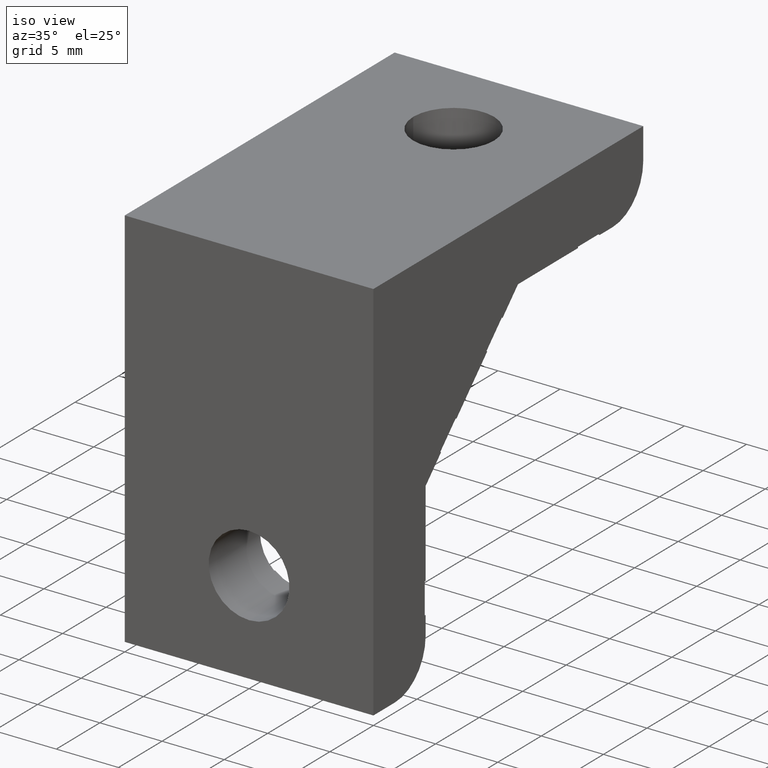
[diagram: clean part render]
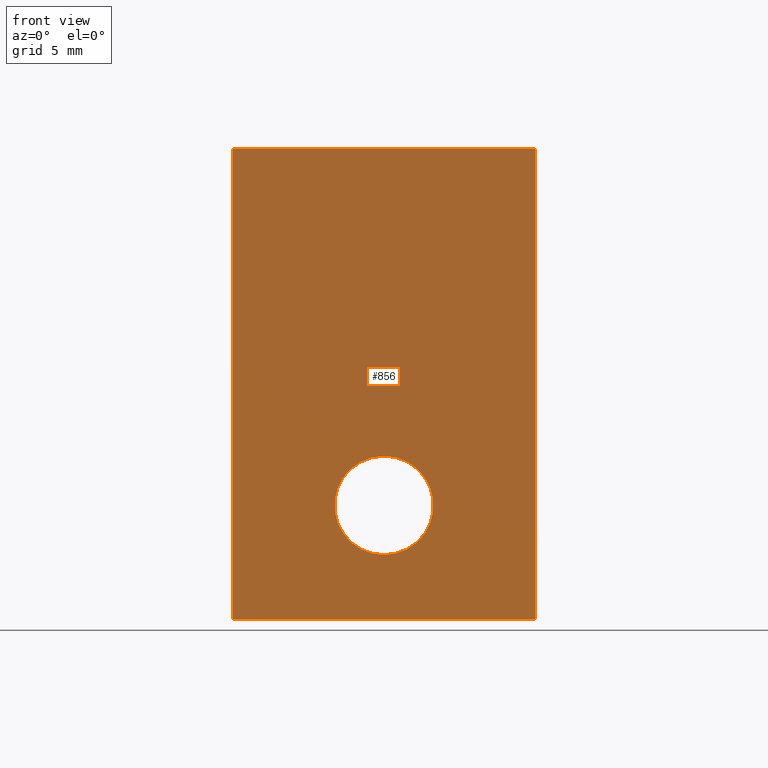
[diagram: tour spotlight — one face highlighted and labeled with its STEP entity id]
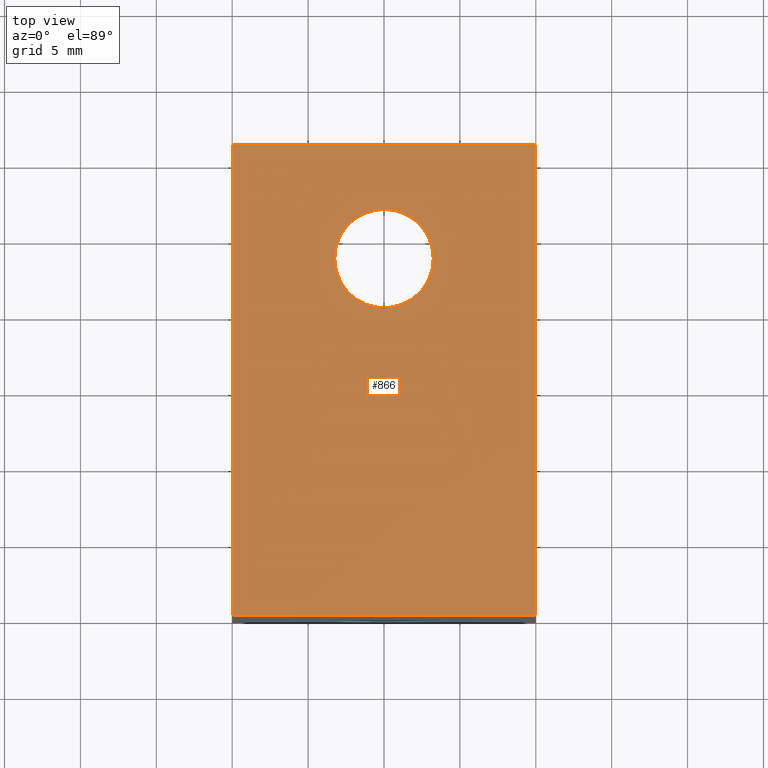
[diagram: tour spotlight — one face highlighted and labeled with its STEP entity id]
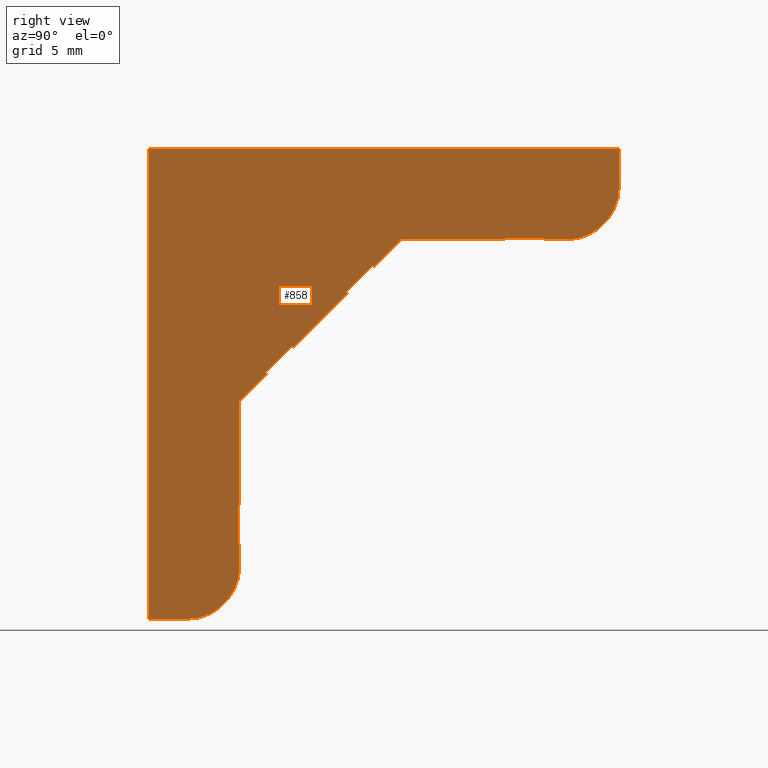
[diagram: tour spotlight — one face highlighted and labeled with its STEP entity id]
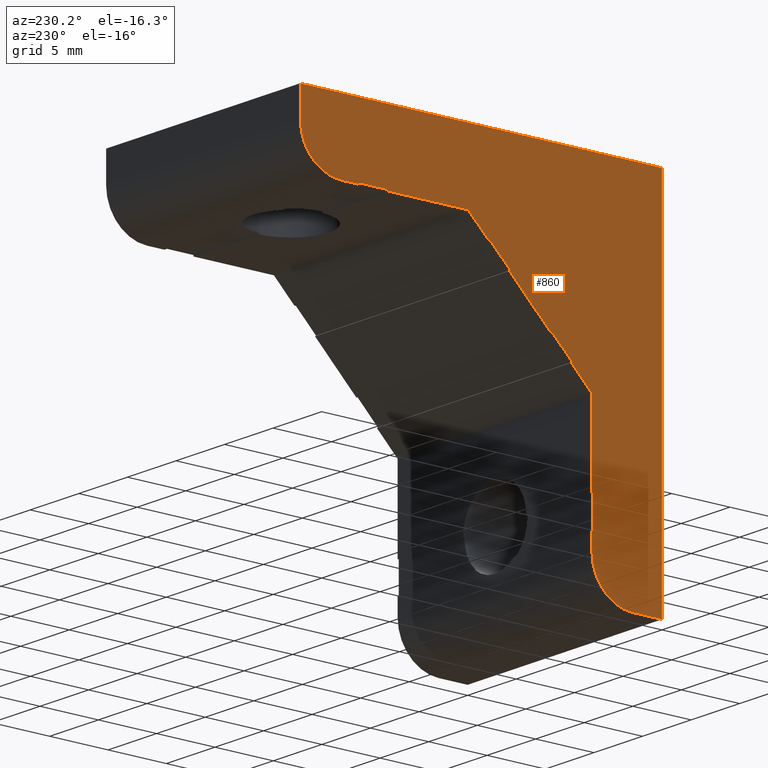
[diagram: tour spotlight — one face highlighted and labeled with its STEP entity id]
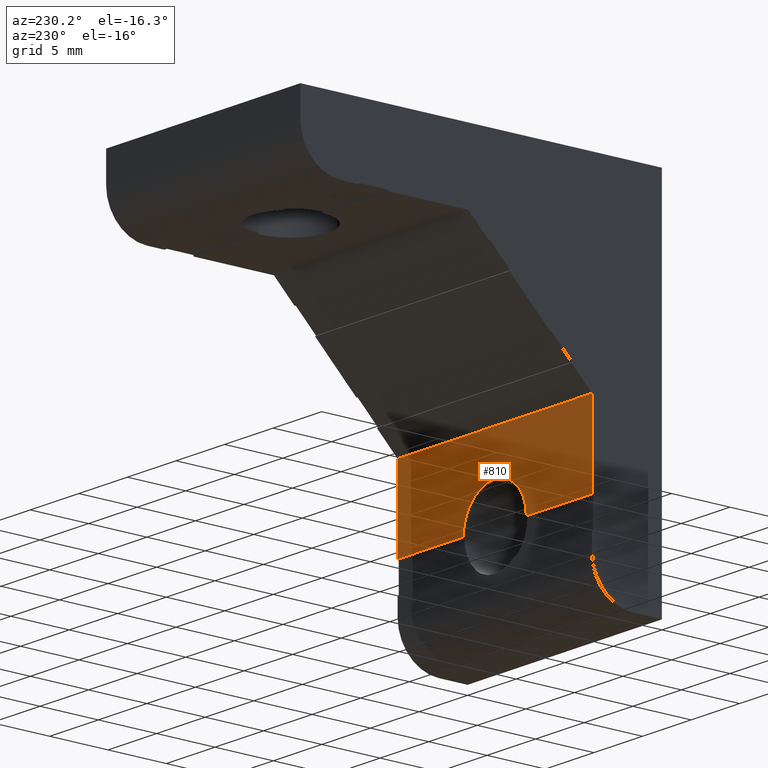
[diagram: tour spotlight — one face highlighted and labeled with its STEP entity id]
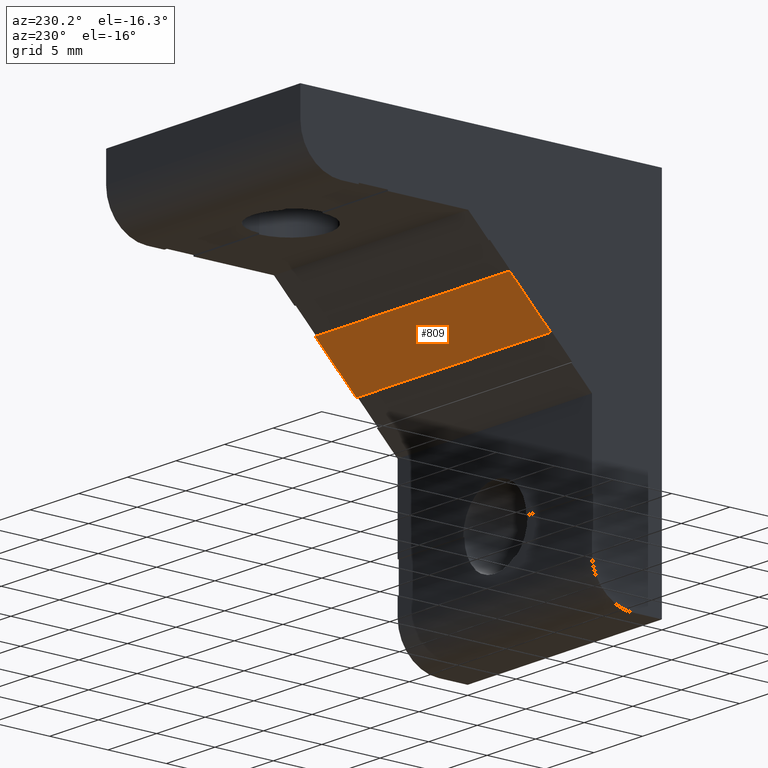
[diagram: tour spotlight — one face highlighted and labeled with its STEP entity id]
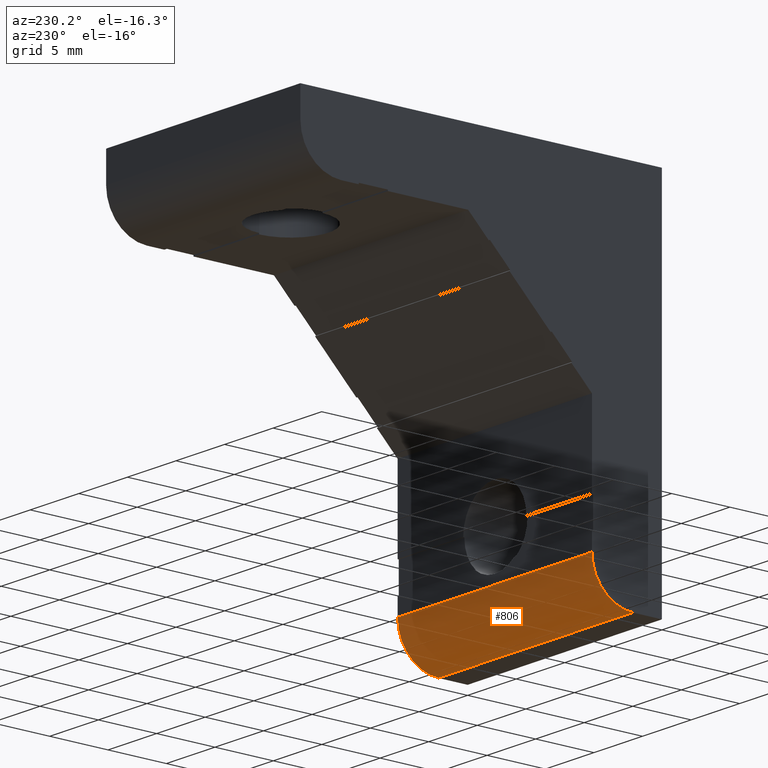
[diagram: tour spotlight — one face highlighted and labeled with its STEP entity id]
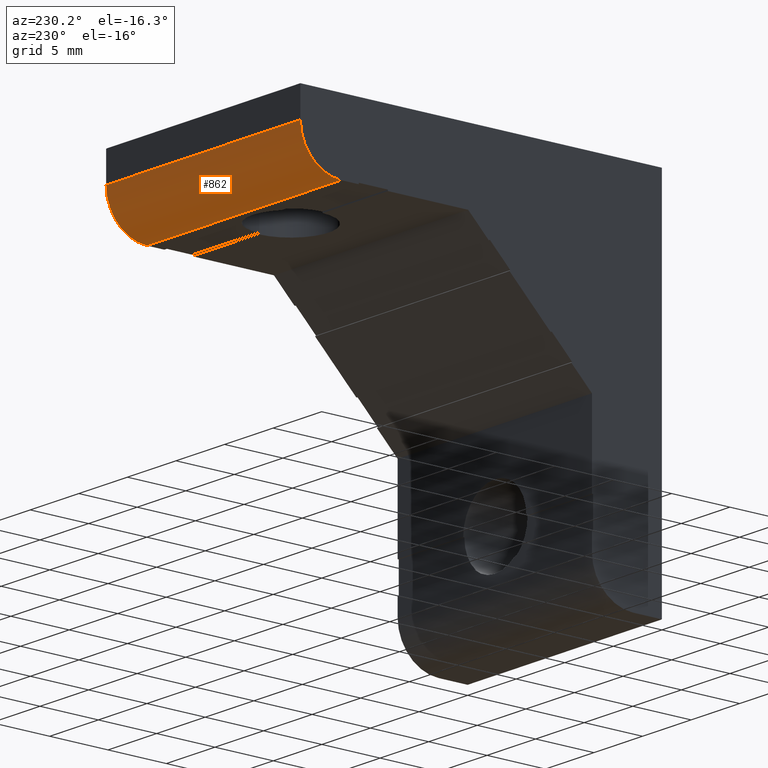
[diagram: tour spotlight — one face highlighted and labeled with its STEP entity id]
A machine part: a face-by-face anatomy tour. The part has 37 B-rep faces; the first image is the clean iso view, then the 8 largest visible faces are spotlighted one at a time (largest first), each with its STEP entity span.

Face 1 — front view, entity #856. In plain terms, the highlighted planar face has unit normal (0, 1, 0).
Definition (entity closure, byte-faithful):
#172 = FACE_BOUND ( 'NONE', #1166, .T. ) ;
#193 = CIRCLE ( 'NONE', #291, 3.249999999999999600 ) ;
#218 = LINE ( 'NONE', #592, #219 ) ;
#219 = VECTOR ( 'NONE', #593, 1000.000000000000000 ) ;
#249 = EDGE_CURVE ( 'NONE', #1036, #1037, #193, .T. ) ;
#263 = EDGE_CURVE ( 'NONE', #1050, #1049, #218, .T. ) ;
#291 = AXIS2_PLACEMENT_3D ( 'NONE', #1285, #1284, #1283 ) ;
#321 = CARTESIAN_POINT ( 'NONE',  ( 20.00000000000000000, 0.0000000000000000000, 0.0000000000000000000 ) ) ;
#322 = CARTESIAN_POINT ( 'NONE',  ( 0.0000000000000000000, 0.0000000000000000000, 0.0000000000000000000 ) ) ;
#370 = CARTESIAN_POINT ( 'NONE',  ( 10.00000000000000000, 0.0000000000000000000, -23.50000000000000000 ) ) ;
#371 = DIRECTION ( 'NONE',  ( 0.0000000000000000000, -1.000000000000000000, -0.0000000000000000000 ) ) ;
#372 = DIRECTION ( 'NONE',  ( 0.0000000000000000000, 0.0000000000000000000, 1.000000000000000000 ) ) ;
#438 = PLANE ( 'NONE',  #815 ) ;
#439 = CARTESIAN_POINT ( 'NONE',  ( 0.0000000000000000000, 0.0000000000000000000, -31.00000000000000000 ) ) ;
#440 = DIRECTION ( 'NONE',  ( 0.0000000000000000000, 1.000000000000000000, 0.0000000000000000000 ) ) ;
#441 = DIRECTION ( 'NONE',  ( 0.0000000000000000000, 0.0000000000000000000, 1.000000000000000000 ) ) ;
#518 = CARTESIAN_POINT ( 'NONE',  ( 0.0000000000000000000, 0.0000000000000000000, -15.50000000000000000 ) ) ;
#519 = DIRECTION ( 'NONE',  ( 0.0000000000000000000, 0.0000000000000000000, 1.000000000000000000 ) ) ;
#520 = CARTESIAN_POINT ( 'NONE',  ( 10.00000000000000000, 0.0000000000000000000, 0.0000000000000000000 ) ) ;
#521 = DIRECTION ( 'NONE',  ( -1.000000000000000000, 0.0000000000000000000, 0.0000000000000000000 ) ) ;
#522 = CARTESIAN_POINT ( 'NONE',  ( 20.00000000000000000, 0.0000000000000000000, -15.50000000000000000 ) ) ;
#523 = DIRECTION ( 'NONE',  ( 0.0000000000000000000, 0.0000000000000000000, 1.000000000000000000 ) ) ;
#546 = CARTESIAN_POINT ( 'NONE',  ( 10.00000000000000000, 0.0000000000000000000, -26.75000000000000000 ) ) ;
#547 = CARTESIAN_POINT ( 'NONE',  ( 10.00000000000000000, 0.0000000000000000000, -20.25000000000000000 ) ) ;
#559 = CARTESIAN_POINT ( 'NONE',  ( 0.0000000000000000000, 0.0000000000000000000, -31.00000000000000000 ) ) ;
#560 = CARTESIAN_POINT ( 'NONE',  ( 20.00000000000000000, 0.0000000000000000000, -31.00000000000000000 ) ) ;
#592 = CARTESIAN_POINT ( 'NONE',  ( 10.00000000000000000, 0.0000000000000000000, -31.00000000000000000 ) ) ;
#593 = DIRECTION ( 'NONE',  ( -1.000000000000000000, -0.0000000000000000000, -0.0000000000000000000 ) ) ;
#730 = CIRCLE ( 'NONE', #836, 3.249999999999999600 ) ;
#815 = AXIS2_PLACEMENT_3D ( 'NONE', #439, #440, #441 ) ;
#836 = AXIS2_PLACEMENT_3D ( 'NONE', #370, #371, #372 ) ;
#856 = ADVANCED_FACE ( 'NONE', ( #172, #875 ), #438, .F. ) ;
#875 = FACE_OUTER_BOUND ( 'NONE', #1165, .T. ) ;
#910 = LINE ( 'NONE', #518, #911 ) ;
#911 = VECTOR ( 'NONE', #519, 1000.000000000000000 ) ;
#912 = LINE ( 'NONE', #520, #913 ) ;
#913 = VECTOR ( 'NONE', #521, 1000.000000000000000 ) ;
#914 = LINE ( 'NONE', #522, #915 ) ;
#915 = VECTOR ( 'NONE', #523, 1000.000000000000000 ) ;
#979 = ORIENTED_EDGE ( 'NONE', *, *, #1010, .F. ) ;
#980 = ORIENTED_EDGE ( 'NONE', *, *, #1011, .T. ) ;
#981 = ORIENTED_EDGE ( 'NONE', *, *, #1012, .T. ) ;
#982 = ORIENTED_EDGE ( 'NONE', *, *, #263, .F. ) ;
#983 = ORIENTED_EDGE ( 'NONE', *, *, #249, .F. ) ;
#984 = ORIENTED_EDGE ( 'NONE', *, *, #1308, .F. ) ;
#1010 = EDGE_CURVE ( 'NONE', #1049, #1072, #910, .T. ) ;
#1011 = EDGE_CURVE ( 'NONE', #1071, #1072, #912, .T. ) ;
#1012 = EDGE_CURVE ( 'NONE', #1050, #1071, #914, .T. ) ;
#1036 = VERTEX_POINT ( 'NONE', #546 ) ;
#1037 = VERTEX_POINT ( 'NONE', #547 ) ;
#1049 = VERTEX_POINT ( 'NONE', #559 ) ;
#1050 = VERTEX_POINT ( 'NONE', #560 ) ;
#1071 = VERTEX_POINT ( 'NONE', #321 ) ;
#1072 = VERTEX_POINT ( 'NONE', #322 ) ;
#1165 = EDGE_LOOP ( 'NONE', ( #982, #981, #980, #979 ) ) ;
#1166 = EDGE_LOOP ( 'NONE', ( #984, #983 ) ) ;
#1283 = DIRECTION ( 'NONE',  ( 0.0000000000000000000, 0.0000000000000000000, 1.000000000000000000 ) ) ;
#1284 = DIRECTION ( 'NONE',  ( 0.0000000000000000000, -1.000000000000000000, -0.0000000000000000000 ) ) ;
#1285 = CARTESIAN_POINT ( 'NONE',  ( 10.00000000000000000, 0.0000000000000000000, -23.50000000000000000 ) ) ;
#1308 = EDGE_CURVE ( 'NONE', #1037, #1036, #730, .T. ) ;

Face 2 — top view, entity #866. In plain terms, the highlighted planar face has unit normal (0, 0, -1).
Definition (entity closure, byte-faithful):
#44 = ORIENTED_EDGE ( 'NONE', *, *, #1314, .F. ) ;
#45 = ORIENTED_EDGE ( 'NONE', *, *, #275, .F. ) ;
#46 = ORIENTED_EDGE ( 'NONE', *, *, #1011, .F. ) ;
#47 = ORIENTED_EDGE ( 'NONE', *, *, #1127, .F. ) ;
#48 = ORIENTED_EDGE ( 'NONE', *, *, #1014, .F. ) ;
#49 = ORIENTED_EDGE ( 'NONE', *, *, #1124, .F. ) ;
#238 = CIRCLE ( 'NONE', #298, 3.249999999999999600 ) ;
#275 = EDGE_CURVE ( 'NONE', #1044, #1040, #238, .T. ) ;
#298 = AXIS2_PLACEMENT_3D ( 'NONE', #620, #621, #622 ) ;
#321 = CARTESIAN_POINT ( 'NONE',  ( 20.00000000000000000, 0.0000000000000000000, 0.0000000000000000000 ) ) ;
#322 = CARTESIAN_POINT ( 'NONE',  ( 0.0000000000000000000, 0.0000000000000000000, 0.0000000000000000000 ) ) ;
#339 = CARTESIAN_POINT ( 'NONE',  ( 20.00000000000000000, 31.00000000000000000, 0.0000000000000000000 ) ) ;
#340 = CARTESIAN_POINT ( 'NONE',  ( 0.0000000000000000000, 31.00000000000000000, 0.0000000000000000000 ) ) ;
#348 = CARTESIAN_POINT ( 'NONE',  ( 0.0000000000000000000, 15.50000000000000000, 0.0000000000000000000 ) ) ;
#349 = DIRECTION ( 'NONE',  ( 0.0000000000000000000, 1.000000000000000000, 0.0000000000000000000 ) ) ;
#354 = CARTESIAN_POINT ( 'NONE',  ( 20.00000000000000000, 15.50000000000000000, 0.0000000000000000000 ) ) ;
#355 = DIRECTION ( 'NONE',  ( -0.0000000000000000000, -1.000000000000000000, -0.0000000000000000000 ) ) ;
#383 = CARTESIAN_POINT ( 'NONE',  ( 10.00000000000000000, 23.50000000000000000, 0.0000000000000000000 ) ) ;
#384 = DIRECTION ( 'NONE',  ( -0.0000000000000000000, -0.0000000000000000000, 1.000000000000000000 ) ) ;
#385 = DIRECTION ( 'NONE',  ( -1.000000000000000000, 0.0000000000000000000, 0.0000000000000000000 ) ) ;
#477 = PLANE ( 'NONE',  #825 ) ;
#478 = CARTESIAN_POINT ( 'NONE',  ( 20.00000000000000000, 0.0000000000000000000, 0.0000000000000000000 ) ) ;
#479 = DIRECTION ( 'NONE',  ( 0.0000000000000000000, 0.0000000000000000000, -1.000000000000000000 ) ) ;
#480 = DIRECTION ( 'NONE',  ( -1.000000000000000000, 0.0000000000000000000, 0.0000000000000000000 ) ) ;
#520 = CARTESIAN_POINT ( 'NONE',  ( 10.00000000000000000, 0.0000000000000000000, 0.0000000000000000000 ) ) ;
#521 = DIRECTION ( 'NONE',  ( -1.000000000000000000, 0.0000000000000000000, 0.0000000000000000000 ) ) ;
#526 = CARTESIAN_POINT ( 'NONE',  ( 10.00000000000000000, 31.00000000000000000, 0.0000000000000000000 ) ) ;
#527 = DIRECTION ( 'NONE',  ( 1.000000000000000000, -0.0000000000000000000, -0.0000000000000000000 ) ) ;
#550 = CARTESIAN_POINT ( 'NONE',  ( 6.750000000000000900, 23.50000000000000000, 0.0000000000000000000 ) ) ;
#554 = CARTESIAN_POINT ( 'NONE',  ( 13.25000000000000000, 23.50000000000000000, 0.0000000000000000000 ) ) ;
#620 = CARTESIAN_POINT ( 'NONE',  ( 10.00000000000000000, 23.50000000000000000, 0.0000000000000000000 ) ) ;
#621 = DIRECTION ( 'NONE',  ( -0.0000000000000000000, -0.0000000000000000000, 1.000000000000000000 ) ) ;
#622 = DIRECTION ( 'NONE',  ( -1.000000000000000000, 0.0000000000000000000, 0.0000000000000000000 ) ) ;
#740 = CIRCLE ( 'NONE', #837, 3.249999999999999600 ) ;
#825 = AXIS2_PLACEMENT_3D ( 'NONE', #478, #479, #480 ) ;
#837 = AXIS2_PLACEMENT_3D ( 'NONE', #383, #384, #385 ) ;
#866 = ADVANCED_FACE ( 'NONE', ( #886, #887 ), #477, .F. ) ;
#886 = FACE_BOUND ( 'NONE', #1191, .T. ) ;
#887 = FACE_OUTER_BOUND ( 'NONE', #1190, .T. ) ;
#912 = LINE ( 'NONE', #520, #913 ) ;
#913 = VECTOR ( 'NONE', #521, 1000.000000000000000 ) ;
#918 = LINE ( 'NONE', #526, #919 ) ;
#919 = VECTOR ( 'NONE', #527, 1000.000000000000000 ) ;
#926 = LINE ( 'NONE', #348, #928 ) ;
#928 = VECTOR ( 'NONE', #349, 1000.000000000000000 ) ;
#933 = LINE ( 'NONE', #354, #934 ) ;
#934 = VECTOR ( 'NONE', #355, 1000.000000000000000 ) ;
#1011 = EDGE_CURVE ( 'NONE', #1071, #1072, #912, .T. ) ;
#1014 = EDGE_CURVE ( 'NONE', #1090, #1089, #918, .T. ) ;
#1040 = VERTEX_POINT ( 'NONE', #550 ) ;
#1044 = VERTEX_POINT ( 'NONE', #554 ) ;
#1071 = VERTEX_POINT ( 'NONE', #321 ) ;
#1072 = VERTEX_POINT ( 'NONE', #322 ) ;
#1089 = VERTEX_POINT ( 'NONE', #339 ) ;
#1090 = VERTEX_POINT ( 'NONE', #340 ) ;
#1124 = EDGE_CURVE ( 'NONE', #1072, #1090, #926, .T. ) ;
#1127 = EDGE_CURVE ( 'NONE', #1089, #1071, #933, .T. ) ;
#1190 = EDGE_LOOP ( 'NONE', ( #46, #47, #48, #49 ) ) ;
#1191 = EDGE_LOOP ( 'NONE', ( #44, #45 ) ) ;
#1314 = EDGE_CURVE ( 'NONE', #1040, #1044, #740, .T. ) ;

Face 3 — right view, entity #858. In plain terms, the highlighted planar face has unit normal (-1, 0, 0).
Definition (entity closure, byte-faithful):
#1 = EDGE_CURVE ( 'NONE', #1023, #1024, #83, .T. ) ;
#13 = EDGE_CURVE ( 'NONE', #1020, #1023, #104, .T. ) ;
#28 = EDGE_CURVE ( 'NONE', #1048, #1058, #185, .T. ) ;
#83 = LINE ( 'NONE', #1091, #84 ) ;
#84 = VECTOR ( 'NONE', #1092, 1000.000000000000000 ) ;
#104 = LINE ( 'NONE', #1118, #173 ) ;
#105 = VERTEX_POINT ( 'NONE', #1290 ) ;
#129 = LINE ( 'NONE', #656, #130 ) ;
#130 = VECTOR ( 'NONE', #657, 1000.000000000000100 ) ;
#137 = LINE ( 'NONE', #664, #138 ) ;
#138 = VECTOR ( 'NONE', #665, 1000.000000000000100 ) ;
#145 = LINE ( 'NONE', #672, #146 ) ;
#146 = VECTOR ( 'NONE', #673, 1000.000000000000100 ) ;
#173 = VECTOR ( 'NONE', #1119, 1000.000000000000000 ) ;
#185 = LINE ( 'NONE', #1294, #186 ) ;
#186 = VECTOR ( 'NONE', #1293, 1000.000000000000000 ) ;
#189 = LINE ( 'NONE', #1289, #190 ) ;
#190 = VECTOR ( 'NONE', #1288, 1000.000000000000000 ) ;
#198 = LINE ( 'NONE', #1000, #199 ) ;
#199 = VECTOR ( 'NONE', #1002, 1000.000000000000000 ) ;
#204 = LINE ( 'NONE', #1009, #205 ) ;
#205 = VECTOR ( 'NONE', #1133, 1000.000000000000000 ) ;
#210 = LINE ( 'NONE', #584, #211 ) ;
#211 = VECTOR ( 'NONE', #585, 1000.000000000000100 ) ;
#212 = LINE ( 'NONE', #586, #213 ) ;
#213 = VECTOR ( 'NONE', #587, 1000.000000000000000 ) ;
#220 = LINE ( 'NONE', #594, #221 ) ;
#221 = VECTOR ( 'NONE', #595, 1000.000000000000000 ) ;
#222 = CIRCLE ( 'NONE', #294, 3.499999999999999600 ) ;
#228 = LINE ( 'NONE', #606, #229 ) ;
#229 = VECTOR ( 'NONE', #607, 1000.000000000000000 ) ;
#230 = LINE ( 'NONE', #608, #231 ) ;
#231 = VECTOR ( 'NONE', #609, 1000.000000000000100 ) ;
#247 = EDGE_CURVE ( 'NONE', #1057, #1058, #189, .T. ) ;
#253 = EDGE_CURVE ( 'NONE', #1065, #1048, #198, .T. ) ;
#256 = EDGE_CURVE ( 'NONE', #1070, #1063, #204, .T. ) ;
#259 = EDGE_CURVE ( 'NONE', #1027, #1067, #210, .T. ) ;
#260 = EDGE_CURVE ( 'NONE', #1056, #105, #212, .T. ) ;
#264 = EDGE_CURVE ( 'NONE', #1052, #1050, #220, .T. ) ;
#265 = EDGE_CURVE ( 'NONE', #1020, #1052, #222, .T. ) ;
#269 = EDGE_CURVE ( 'NONE', #1057, #1024, #228, .T. ) ;
#270 = EDGE_CURVE ( 'NONE', #1056, #1053, #230, .T. ) ;
#294 = AXIS2_PLACEMENT_3D ( 'NONE', #596, #597, #598 ) ;
#320 = CARTESIAN_POINT ( 'NONE',  ( 20.00000000000000400, 9.464823228000000200, -13.00035713400000000 ) ) ;
#321 = CARTESIAN_POINT ( 'NONE',  ( 20.00000000000000000, 0.0000000000000000000, 0.0000000000000000000 ) ) ;
#323 = CARTESIAN_POINT ( 'NONE',  ( 19.99999999999999600, 16.60660171800000400, -6.000000000000000000 ) ) ;
#325 = CARTESIAN_POINT ( 'NONE',  ( 20.00000000000000000, 23.50000000000000400, -6.000000000000000900 ) ) ;
#326 = CARTESIAN_POINT ( 'NONE',  ( 20.00000000000000000, 23.50000000000000400, -5.899999999999999500 ) ) ;
#327 = CARTESIAN_POINT ( 'NONE',  ( 20.00000000000000000, 26.00000000000000700, -5.899999999999999500 ) ) ;
#328 = CARTESIAN_POINT ( 'NONE',  ( 20.00000000000000400, 25.99999999566667000, -5.999999998999999000 ) ) ;
#329 = CARTESIAN_POINT ( 'NONE',  ( 20.00000000000000000, 27.50000000000000000, -5.999999998499999000 ) ) ;
#339 = CARTESIAN_POINT ( 'NONE',  ( 20.00000000000000000, 31.00000000000000000, 0.0000000000000000000 ) ) ;
#354 = CARTESIAN_POINT ( 'NONE',  ( 20.00000000000000000, 15.50000000000000000, 0.0000000000000000000 ) ) ;
#355 = DIRECTION ( 'NONE',  ( -0.0000000000000000000, -1.000000000000000000, -0.0000000000000000000 ) ) ;
#356 = CARTESIAN_POINT ( 'NONE',  ( 20.00000000000000000, 27.50000000000000000, -2.500000000000000000 ) ) ;
#357 = DIRECTION ( 'NONE',  ( 1.000000000000000000, 4.956352788505162300E-016, 0.0000000000000000000 ) ) ;
#358 = DIRECTION ( 'NONE',  ( 0.0000000000000000000, -1.000000000000000000, 0.0000000000000000000 ) ) ;
#359 = CARTESIAN_POINT ( 'NONE',  ( 20.00000000000000000, 15.50000000000000000, -5.999999996999996200 ) ) ;
#360 = DIRECTION ( 'NONE',  ( -0.0000000000000000000, -1.000000000000000000, -0.0000000000000000000 ) ) ;
#361 = CARTESIAN_POINT ( 'NONE',  ( 20.00000000000000000, 26.00000000000000400, -5.950000000000000200 ) ) ;
#362 = DIRECTION ( 'NONE',  ( -0.0000000000000000000, -0.0000000000000000000, -1.000000000000000000 ) ) ;
#446 = PLANE ( 'NONE',  #817 ) ;
#447 = CARTESIAN_POINT ( 'NONE',  ( 20.00000000000000000, 0.0000000000000000000, -31.00000000000000000 ) ) ;
#448 = DIRECTION ( 'NONE',  ( -1.000000000000000000, 0.0000000000000000000, 0.0000000000000000000 ) ) ;
#449 = DIRECTION ( 'NONE',  ( 0.0000000000000000000, 0.0000000000000000000, 1.000000000000000000 ) ) ;
#508 = CARTESIAN_POINT ( 'NONE',  ( 20.00000000000000000, 24.75000000000000000, -5.900000000000000400 ) ) ;
#509 = DIRECTION ( 'NONE',  ( -0.0000000000000000000, 1.000000000000000000, -0.0000000000000000000 ) ) ;
#510 = CARTESIAN_POINT ( 'NONE',  ( 20.00000000000000000, 23.50000000000000000, -5.950000000000000200 ) ) ;
#511 = DIRECTION ( 'NONE',  ( -0.0000000000000000000, -0.0000000000000000000, 1.000000000000000000 ) ) ;
#512 = CARTESIAN_POINT ( 'NONE',  ( 20.00000000000000000, 20.05330085900000400, -6.000000000000000000 ) ) ;
#513 = DIRECTION ( 'NONE',  ( -0.0000000000000000000, 1.000000000000000000, -0.0000000000000000000 ) ) ;
#514 = CARTESIAN_POINT ( 'NONE',  ( 19.99999999999999300, 14.83883476500000000, -7.767766952999999800 ) ) ;
#515 = DIRECTION ( 'NONE',  ( -0.0000000000000000000, -0.7071067811865487900, -0.7071067811865463500 ) ) ;
#522 = CARTESIAN_POINT ( 'NONE',  ( 20.00000000000000000, 0.0000000000000000000, -15.50000000000000000 ) ) ;
#523 = DIRECTION ( 'NONE',  ( 0.0000000000000000000, 0.0000000000000000000, 1.000000000000000000 ) ) ;
#524 = CARTESIAN_POINT ( 'NONE',  ( 20.00000000000000000, 31.00000000000000000, -15.50000000000000000 ) ) ;
#525 = DIRECTION ( 'NONE',  ( -0.0000000000000000000, -0.0000000000000000000, -1.000000000000000000 ) ) ;
#530 = CARTESIAN_POINT ( 'NONE',  ( 19.99999999999999600, 6.000000000000000000, -27.50000000035893100 ) ) ;
#533 = CARTESIAN_POINT ( 'NONE',  ( 20.00000000000000000, 6.000000000000000900, -26.00000000000000700 ) ) ;
#534 = CARTESIAN_POINT ( 'NONE',  ( 20.00000000000000000, 5.900000003666666400, -26.00000000000000700 ) ) ;
#537 = CARTESIAN_POINT ( 'NONE',  ( 19.99999999999999600, 13.07106781200000100, -9.535533906000003100 ) ) ;
#556 = CARTESIAN_POINT ( 'NONE',  ( 19.99999999999999600, 31.00000000000000000, -2.500000000358931100 ) ) ;
#558 = CARTESIAN_POINT ( 'NONE',  ( 19.99999999999999600, 5.999999998500001700, -16.60660171950000600 ) ) ;
#560 = CARTESIAN_POINT ( 'NONE',  ( 20.00000000000000000, 0.0000000000000000000, -31.00000000000000000 ) ) ;
#562 = CARTESIAN_POINT ( 'NONE',  ( 20.00000000000000000, 2.500000000000000400, -31.00000000000000000 ) ) ;
#563 = CARTESIAN_POINT ( 'NONE',  ( 19.99999999999999600, 14.83883476500000000, -7.767766952999999800 ) ) ;
#566 = CARTESIAN_POINT ( 'NONE',  ( 20.00000000000000400, 14.76812408699999900, -7.697056274999999600 ) ) ;
#567 = CARTESIAN_POINT ( 'NONE',  ( 20.00000000000000000, 5.900000003666666400, -23.49999999933333300 ) ) ;
#568 = CARTESIAN_POINT ( 'NONE',  ( 20.00000000000000000, 5.999999999000000800, -23.50000000000000400 ) ) ;
#573 = CARTESIAN_POINT ( 'NONE',  ( 20.00000000000000400, 7.697056274999999600, -14.76812408699999900 ) ) ;
#575 = CARTESIAN_POINT ( 'NONE',  ( 19.99999999999999600, 7.767766952999998900, -14.83883476500000000 ) ) ;
#577 = CARTESIAN_POINT ( 'NONE',  ( 19.99999999999999600, 9.535533906000001300, -13.07106781200000100 ) ) ;
#584 = CARTESIAN_POINT ( 'NONE',  ( 19.99999999999999300, 9.535533906000001300, -13.07106781200000100 ) ) ;
#585 = DIRECTION ( 'NONE',  ( -0.0000000000000000000, -0.7071067811865474600, -0.7071067811865474600 ) ) ;
#586 = CARTESIAN_POINT ( 'NONE',  ( 20.00000000000000700, 14.76812408699999900, -7.697056274999999600 ) ) ;
#587 = DIRECTION ( 'NONE',  ( 0.0000000000000000000, -0.7071067811865472400, -0.7071067811865479100 ) ) ;
#594 = CARTESIAN_POINT ( 'NONE',  ( 20.00000000000000000, 15.50000000000000000, -31.00000000000000000 ) ) ;
#595 = DIRECTION ( 'NONE',  ( -0.0000000000000000000, -1.000000000000000000, -0.0000000000000000000 ) ) ;
#596 = CARTESIAN_POINT ( 'NONE',  ( 20.00000000000000000, 2.500000000000000000, -27.50000000000000000 ) ) ;
#597 = DIRECTION ( 'NONE',  ( -1.000000000000000000, -4.956352788505164300E-016, -0.0000000000000000000 ) ) ;
#598 = DIRECTION ( 'NONE',  ( 9.912705577010326500E-016, -1.000000000000000000, 0.0000000000000000000 ) ) ;
#606 = CARTESIAN_POINT ( 'NONE',  ( 20.00000000000000000, 5.900000011000000400, -15.50000000000000000 ) ) ;
#607 = DIRECTION ( 'NONE',  ( -0.0000000000000000000, -0.0000000000000000000, -1.000000000000000000 ) ) ;
#608 = CARTESIAN_POINT ( 'NONE',  ( 20.00000000000000000, 14.80347942599999900, -7.732411614000000100 ) ) ;
#609 = DIRECTION ( 'NONE',  ( -0.0000000000000000000, 0.7071067811865517900, -0.7071067811865431300 ) ) ;
#656 = CARTESIAN_POINT ( 'NONE',  ( 20.00000000000000000, 7.732411614000000100, -14.80347942599999900 ) ) ;
#657 = DIRECTION ( 'NONE',  ( -0.0000000000000000000, -0.7071067811865431300, 0.7071067811865517900 ) ) ;
#664 = CARTESIAN_POINT ( 'NONE',  ( 20.00000000000000000, 9.500178567000000700, -13.03571247300000000 ) ) ;
#665 = DIRECTION ( 'NONE',  ( -0.0000000000000000000, 0.7071067811865474600, -0.7071067811865474600 ) ) ;
#672 = CARTESIAN_POINT ( 'NONE',  ( 20.00000000000000000, 13.03571247300000000, -9.500178567000000700 ) ) ;
#673 = DIRECTION ( 'NONE',  ( -0.0000000000000000000, -0.7071067811865474600, 0.7071067811865474600 ) ) ;
#784 = EDGE_CURVE ( 'NONE', #1065, #1063, #129, .T. ) ;
#788 = EDGE_CURVE ( 'NONE', #1070, #1067, #137, .T. ) ;
#792 = EDGE_CURVE ( 'NONE', #1027, #105, #145, .T. ) ;
#817 = AXIS2_PLACEMENT_3D ( 'NONE', #447, #448, #449 ) ;
#834 = AXIS2_PLACEMENT_3D ( 'NONE', #356, #357, #358 ) ;
#858 = ADVANCED_FACE ( 'NONE', ( #877 ), #446, .F. ) ;
#877 = FACE_OUTER_BOUND ( 'NONE', #1199, .T. ) ;
#900 = LINE ( 'NONE', #508, #901 ) ;
#901 = VECTOR ( 'NONE', #509, 1000.000000000000000 ) ;
#902 = LINE ( 'NONE', #510, #903 ) ;
#903 = VECTOR ( 'NONE', #511, 1000.000000000000000 ) ;
#904 = LINE ( 'NONE', #512, #905 ) ;
#905 = VECTOR ( 'NONE', #513, 1000.000000000000000 ) ;
#906 = LINE ( 'NONE', #514, #907 ) ;
#907 = VECTOR ( 'NONE', #515, 1000.000000000000000 ) ;
#914 = LINE ( 'NONE', #522, #915 ) ;
#915 = VECTOR ( 'NONE', #523, 1000.000000000000000 ) ;
#916 = LINE ( 'NONE', #524, #917 ) ;
#917 = VECTOR ( 'NONE', #525, 1000.000000000000000 ) ;
#933 = LINE ( 'NONE', #354, #934 ) ;
#934 = VECTOR ( 'NONE', #355, 1000.000000000000000 ) ;
#935 = LINE ( 'NONE', #359, #937 ) ;
#936 = CIRCLE ( 'NONE', #834, 3.499999999999999600 ) ;
#937 = VECTOR ( 'NONE', #360, 1000.000000000000000 ) ;
#938 = LINE ( 'NONE', #361, #939 ) ;
#939 = VECTOR ( 'NONE', #362, 1000.000000000000000 ) ;
#1000 = CARTESIAN_POINT ( 'NONE',  ( 19.99999999999999300, 6.000000000000000000, -16.60660171800000400 ) ) ;
#1002 = DIRECTION ( 'NONE',  ( -0.0000000000000000000, -0.7071067811865463500, -0.7071067811865487900 ) ) ;
#1004 = EDGE_CURVE ( 'NONE', #1076, #1077, #900, .T. ) ;
#1005 = EDGE_CURVE ( 'NONE', #1075, #1076, #902, .T. ) ;
#1006 = EDGE_CURVE ( 'NONE', #1073, #1075, #904, .T. ) ;
#1007 = EDGE_CURVE ( 'NONE', #1073, #1053, #906, .T. ) ;
#1009 = CARTESIAN_POINT ( 'NONE',  ( 20.00000000000000700, 9.464823228000000200, -13.00035713400000000 ) ) ;
#1012 = EDGE_CURVE ( 'NONE', #1050, #1071, #914, .T. ) ;
#1013 = EDGE_CURVE ( 'NONE', #1089, #1046, #916, .T. ) ;
#1020 = VERTEX_POINT ( 'NONE', #530 ) ;
#1023 = VERTEX_POINT ( 'NONE', #533 ) ;
#1024 = VERTEX_POINT ( 'NONE', #534 ) ;
#1027 = VERTEX_POINT ( 'NONE', #537 ) ;
#1046 = VERTEX_POINT ( 'NONE', #556 ) ;
#1048 = VERTEX_POINT ( 'NONE', #558 ) ;
#1050 = VERTEX_POINT ( 'NONE', #560 ) ;
#1052 = VERTEX_POINT ( 'NONE', #562 ) ;
#1053 = VERTEX_POINT ( 'NONE', #563 ) ;
#1056 = VERTEX_POINT ( 'NONE', #566 ) ;
#1057 = VERTEX_POINT ( 'NONE', #567 ) ;
#1058 = VERTEX_POINT ( 'NONE', #568 ) ;
#1063 = VERTEX_POINT ( 'NONE', #573 ) ;
#1065 = VERTEX_POINT ( 'NONE', #575 ) ;
#1067 = VERTEX_POINT ( 'NONE', #577 ) ;
#1070 = VERTEX_POINT ( 'NONE', #320 ) ;
#1071 = VERTEX_POINT ( 'NONE', #321 ) ;
#1073 = VERTEX_POINT ( 'NONE', #323 ) ;
#1075 = VERTEX_POINT ( 'NONE', #325 ) ;
#1076 = VERTEX_POINT ( 'NONE', #326 ) ;
#1077 = VERTEX_POINT ( 'NONE', #327 ) ;
#1078 = VERTEX_POINT ( 'NONE', #328 ) ;
#1079 = VERTEX_POINT ( 'NONE', #329 ) ;
#1089 = VERTEX_POINT ( 'NONE', #339 ) ;
#1091 = CARTESIAN_POINT ( 'NONE',  ( 20.00000000000000000, 5.950000000000000200, -26.00000000000000400 ) ) ;
#1092 = DIRECTION ( 'NONE',  ( -0.0000000000000000000, -1.000000000000000000, -0.0000000000000000000 ) ) ;
#1118 = CARTESIAN_POINT ( 'NONE',  ( 20.00000000000000000, 6.000000000000000000, -26.75000000000000400 ) ) ;
#1119 = DIRECTION ( 'NONE',  ( -0.0000000000000000000, -0.0000000000000000000, 1.000000000000000000 ) ) ;
#1127 = EDGE_CURVE ( 'NONE', #1089, #1071, #933, .T. ) ;
#1128 = EDGE_CURVE ( 'NONE', #1079, #1046, #936, .T. ) ;
#1129 = EDGE_CURVE ( 'NONE', #1079, #1078, #935, .T. ) ;
#1130 = EDGE_CURVE ( 'NONE', #1077, #1078, #938, .T. ) ;
#1133 = DIRECTION ( 'NONE',  ( 0.0000000000000000000, -0.7071067811865479100, -0.7071067811865472400 ) ) ;
#1199 = EDGE_LOOP ( 'NONE', ( #1236, #1237, #1238, #1239, #1240, #1241, #1242, #1243, #1244, #1245, #1246, #1247, #1248, #1249, #1250, #1251, #1252, #1253, #1254, #1255, #1256, #1257, #1258, #1259, #1260 ) ) ;
#1236 = ORIENTED_EDGE ( 'NONE', *, *, #247, .T. ) ;
#1237 = ORIENTED_EDGE ( 'NONE', *, *, #28, .F. ) ;
#1238 = ORIENTED_EDGE ( 'NONE', *, *, #253, .F. ) ;
#1239 = ORIENTED_EDGE ( 'NONE', *, *, #784, .T. ) ;
#1240 = ORIENTED_EDGE ( 'NONE', *, *, #256, .F. ) ;
#1241 = ORIENTED_EDGE ( 'NONE', *, *, #788, .T. ) ;
#1242 = ORIENTED_EDGE ( 'NONE', *, *, #259, .F. ) ;
#1243 = ORIENTED_EDGE ( 'NONE', *, *, #792, .T. ) ;
#1244 = ORIENTED_EDGE ( 'NONE', *, *, #260, .F. ) ;
#1245 = ORIENTED_EDGE ( 'NONE', *, *, #270, .T. ) ;
#1246 = ORIENTED_EDGE ( 'NONE', *, *, #1007, .F. ) ;
#1247 = ORIENTED_EDGE ( 'NONE', *, *, #1006, .T. ) ;
#1248 = ORIENTED_EDGE ( 'NONE', *, *, #1005, .T. ) ;
#1249 = ORIENTED_EDGE ( 'NONE', *, *, #1004, .T. ) ;
#1250 = ORIENTED_EDGE ( 'NONE', *, *, #1130, .T. ) ;
#1251 = ORIENTED_EDGE ( 'NONE', *, *, #1129, .F. ) ;
#1252 = ORIENTED_EDGE ( 'NONE', *, *, #1128, .T. ) ;
#1253 = ORIENTED_EDGE ( 'NONE', *, *, #1013, .F. ) ;
#1254 = ORIENTED_EDGE ( 'NONE', *, *, #1127, .T. ) ;
#1255 = ORIENTED_EDGE ( 'NONE', *, *, #1012, .F. ) ;
#1256 = ORIENTED_EDGE ( 'NONE', *, *, #264, .F. ) ;
#1257 = ORIENTED_EDGE ( 'NONE', *, *, #265, .F. ) ;
#1258 = ORIENTED_EDGE ( 'NONE', *, *, #13, .T. ) ;
#1259 = ORIENTED_EDGE ( 'NONE', *, *, #1, .T. ) ;
#1260 = ORIENTED_EDGE ( 'NONE', *, *, #269, .F. ) ;
#1288 = DIRECTION ( 'NONE',  ( 0.0000000000000000000, 1.000000000000000000, 0.0000000000000000000 ) ) ;
#1289 = CARTESIAN_POINT ( 'NONE',  ( 20.00000000000000000, 5.950000000000000200, -23.50000000000000000 ) ) ;
#1290 = CARTESIAN_POINT ( 'NONE',  ( 20.00000000000000400, 13.00035713400000000, -9.464823228000000200 ) ) ;
#1293 = DIRECTION ( 'NONE',  ( -0.0000000000000000000, -0.0000000000000000000, -1.000000000000000000 ) ) ;
#1294 = CARTESIAN_POINT ( 'NONE',  ( 20.00000000000000000, 5.999999997000002400, -15.50000000000000000 ) ) ;

Face 4 — auxiliary view, entity #860. In plain terms, the highlighted planar face has unit normal (-1, 0, 0).
Definition (entity closure, byte-faithful):
#10 = EDGE_CURVE ( 'NONE', #1022, #1025, #98, .T. ) ;
#16 = EDGE_CURVE ( 'NONE', #1021, #1022, #177, .T. ) ;
#21 = EDGE_CURVE ( 'NONE', #1047, #1061, #183, .T. ) ;
#98 = LINE ( 'NONE', #1112, #99 ) ;
#99 = VECTOR ( 'NONE', #1113, 1000.000000000000000 ) ;
#109 = LINE ( 'NONE', #636, #110 ) ;
#110 = VECTOR ( 'NONE', #637, 1000.000000000000000 ) ;
#119 = LINE ( 'NONE', #646, #120 ) ;
#120 = VECTOR ( 'NONE', #647, 1000.000000000000000 ) ;
#121 = LINE ( 'NONE', #648, #122 ) ;
#122 = VECTOR ( 'NONE', #649, 1000.000000000000000 ) ;
#125 = LINE ( 'NONE', #652, #126 ) ;
#126 = VECTOR ( 'NONE', #653, 1000.000000000000000 ) ;
#133 = LINE ( 'NONE', #660, #134 ) ;
#134 = VECTOR ( 'NONE', #661, 1000.000000000000100 ) ;
#141 = LINE ( 'NONE', #668, #142 ) ;
#142 = VECTOR ( 'NONE', #669, 1000.000000000000100 ) ;
#149 = LINE ( 'NONE', #676, #150 ) ;
#150 = VECTOR ( 'NONE', #677, 1000.000000000000100 ) ;
#177 = LINE ( 'NONE', #1302, #178 ) ;
#178 = VECTOR ( 'NONE', #1301, 1000.000000000000000 ) ;
#183 = LINE ( 'NONE', #1296, #184 ) ;
#184 = VECTOR ( 'NONE', #1295, 1000.000000000000000 ) ;
#200 = LINE ( 'NONE', #999, #201 ) ;
#201 = VECTOR ( 'NONE', #1018, 1000.000000000000000 ) ;
#206 = LINE ( 'NONE', #580, #207 ) ;
#207 = VECTOR ( 'NONE', #581, 1000.000000000000000 ) ;
#208 = LINE ( 'NONE', #582, #209 ) ;
#209 = VECTOR ( 'NONE', #583, 1000.000000000000000 ) ;
#214 = LINE ( 'NONE', #588, #215 ) ;
#215 = VECTOR ( 'NONE', #589, 1000.000000000000100 ) ;
#216 = LINE ( 'NONE', #590, #217 ) ;
#217 = VECTOR ( 'NONE', #591, 1000.000000000000000 ) ;
#224 = CIRCLE ( 'NONE', #295, 3.499999999999999600 ) ;
#226 = LINE ( 'NONE', #604, #227 ) ;
#227 = VECTOR ( 'NONE', #605, 1000.000000000000000 ) ;
#234 = LINE ( 'NONE', #612, #235 ) ;
#235 = VECTOR ( 'NONE', #613, 1000.000000000000100 ) ;
#254 = EDGE_CURVE ( 'NONE', #1066, #1047, #200, .T. ) ;
#257 = EDGE_CURVE ( 'NONE', #1069, #1064, #206, .T. ) ;
#258 = EDGE_CURVE ( 'NONE', #1026, #1068, #208, .T. ) ;
#261 = EDGE_CURVE ( 'NONE', #1055, #1028, #214, .T. ) ;
#262 = EDGE_CURVE ( 'NONE', #1051, #1049, #216, .T. ) ;
#266 = EDGE_CURVE ( 'NONE', #1025, #1051, #224, .T. ) ;
#268 = EDGE_CURVE ( 'NONE', #1062, #1021, #226, .T. ) ;
#272 = EDGE_CURVE ( 'NONE', #1054, #1055, #234, .T. ) ;
#282 = EDGE_CURVE ( 'NONE', #1084, #1074, #109, .T. ) ;
#295 = AXIS2_PLACEMENT_3D ( 'NONE', #599, #600, #601 ) ;
#319 = CARTESIAN_POINT ( 'NONE',  ( 0.0000000000000000000, 9.464823224250000800, -13.00035713024999900 ) ) ;
#322 = CARTESIAN_POINT ( 'NONE',  ( 0.0000000000000000000, 0.0000000000000000000, 0.0000000000000000000 ) ) ;
#324 = CARTESIAN_POINT ( 'NONE',  ( 0.0000000000000000000, 16.60660172250000200, -6.000000000000000000 ) ) ;
#330 = CARTESIAN_POINT ( 'NONE',  ( 0.0000000000000000000, 27.49999999999999600, -5.999999998499999000 ) ) ;
#331 = CARTESIAN_POINT ( 'NONE',  ( 0.0000000000000000000, 25.99999999566667000, -5.999999998999999000 ) ) ;
#332 = CARTESIAN_POINT ( 'NONE',  ( 0.0000000000000000000, 26.00000000000000700, -5.899999999999999500 ) ) ;
#333 = CARTESIAN_POINT ( 'NONE',  ( 0.0000000000000000000, 23.50000000000000400, -5.899999999999999500 ) ) ;
#334 = CARTESIAN_POINT ( 'NONE',  ( 0.0000000000000000000, 23.50000000000000400, -6.000000000000000900 ) ) ;
#340 = CARTESIAN_POINT ( 'NONE',  ( 0.0000000000000000000, 31.00000000000000000, 0.0000000000000000000 ) ) ;
#341 = CARTESIAN_POINT ( 'NONE',  ( 0.0000000000000000000, 26.00000000000000400, -5.950000000000000200 ) ) ;
#342 = DIRECTION ( 'NONE',  ( 0.0000000000000000000, 0.0000000000000000000, 1.000000000000000000 ) ) ;
#343 = CARTESIAN_POINT ( 'NONE',  ( 0.0000000000000000000, 15.50000000000000000, -5.999999996999996200 ) ) ;
#344 = DIRECTION ( 'NONE',  ( -0.0000000000000000000, -1.000000000000000000, -0.0000000000000000000 ) ) ;
#345 = CARTESIAN_POINT ( 'NONE',  ( 0.0000000000000000000, 27.49999999999998900, -2.500000000000000000 ) ) ;
#346 = DIRECTION ( 'NONE',  ( -1.000000000000000000, -4.956352788505162300E-016, -0.0000000000000000000 ) ) ;
#347 = DIRECTION ( 'NONE',  ( 4.956352788505163300E-016, -1.000000000000000000, 0.0000000000000000000 ) ) ;
#348 = CARTESIAN_POINT ( 'NONE',  ( 0.0000000000000000000, 15.50000000000000000, 0.0000000000000000000 ) ) ;
#349 = DIRECTION ( 'NONE',  ( 0.0000000000000000000, 1.000000000000000000, 0.0000000000000000000 ) ) ;
#454 = PLANE ( 'NONE',  #819 ) ;
#455 = CARTESIAN_POINT ( 'NONE',  ( 0.0000000000000000000, 0.0000000000000000000, -31.00000000000000000 ) ) ;
#456 = DIRECTION ( 'NONE',  ( -1.000000000000000000, 0.0000000000000000000, 0.0000000000000000000 ) ) ;
#457 = DIRECTION ( 'NONE',  ( 0.0000000000000000000, 0.0000000000000000000, 1.000000000000000000 ) ) ;
#516 = CARTESIAN_POINT ( 'NONE',  ( 0.0000000000000000000, 16.60660173000000500, -5.999999996999995300 ) ) ;
#517 = DIRECTION ( 'NONE',  ( 0.0000000000000000000, -0.7071067811865479100, -0.7071067811865471300 ) ) ;
#518 = CARTESIAN_POINT ( 'NONE',  ( 0.0000000000000000000, 0.0000000000000000000, -15.50000000000000000 ) ) ;
#519 = DIRECTION ( 'NONE',  ( 0.0000000000000000000, 0.0000000000000000000, 1.000000000000000000 ) ) ;
#528 = CARTESIAN_POINT ( 'NONE',  ( 0.0000000000000000000, 31.00000000000000000, -15.50000000000000000 ) ) ;
#529 = DIRECTION ( 'NONE',  ( -0.0000000000000000000, -0.0000000000000000000, -1.000000000000000000 ) ) ;
#531 = CARTESIAN_POINT ( 'NONE',  ( 0.0000000000000000000, 5.900000005500001700, -25.99999999783333500 ) ) ;
#532 = CARTESIAN_POINT ( 'NONE',  ( 0.0000000000000000000, 6.000000000000000900, -26.00000000000000700 ) ) ;
#535 = CARTESIAN_POINT ( 'NONE',  ( 8.673617379884008800E-016, 6.000000000000000000, -27.50000000035893100 ) ) ;
#536 = CARTESIAN_POINT ( 'NONE',  ( 0.0000000000000000000, 13.07106781425000000, -9.535533908250000600 ) ) ;
#538 = CARTESIAN_POINT ( 'NONE',  ( 0.0000000000000000000, 13.00035713024999900, -9.464823224250000800 ) ) ;
#555 = CARTESIAN_POINT ( 'NONE',  ( -8.673617379884058200E-016, 31.00000000000000000, -2.500000000358931100 ) ) ;
#557 = CARTESIAN_POINT ( 'NONE',  ( 0.0000000000000000000, 5.999999997750001600, -16.60660172400000400 ) ) ;
#559 = CARTESIAN_POINT ( 'NONE',  ( 0.0000000000000000000, 0.0000000000000000000, -31.00000000000000000 ) ) ;
#561 = CARTESIAN_POINT ( 'NONE',  ( 1.734723475976807100E-015, 2.499999999999995100, -31.00000000000000000 ) ) ;
#564 = CARTESIAN_POINT ( 'NONE',  ( 0.0000000000000000000, 14.83883476724999900, -7.767766955249999900 ) ) ;
#565 = CARTESIAN_POINT ( 'NONE',  ( 0.0000000000000000000, 14.76812409099999700, -7.697056278999997200 ) ) ;
#571 = CARTESIAN_POINT ( 'NONE',  ( 0.0000000000000000000, 5.999999999000000800, -23.50000000000000400 ) ) ;
#572 = CARTESIAN_POINT ( 'NONE',  ( 0.0000000000000000000, 5.900000003666666400, -23.49999999955555600 ) ) ;
#574 = CARTESIAN_POINT ( 'NONE',  ( 0.0000000000000000000, 7.697056278999999900, -14.76812409099999900 ) ) ;
#576 = CARTESIAN_POINT ( 'NONE',  ( 0.0000000000000000000, 7.767766955249999900, -14.83883476724999900 ) ) ;
#578 = CARTESIAN_POINT ( 'NONE',  ( 0.0000000000000000000, 9.535533908250002400, -13.07106781425000200 ) ) ;
#580 = CARTESIAN_POINT ( 'NONE',  ( 0.0000000000000000000, 9.464823218000004700, -13.00035712899999900 ) ) ;
#581 = DIRECTION ( 'NONE',  ( 0.0000000000000000000, -0.7071067749865480600, -0.7071067873865468600 ) ) ;
#582 = CARTESIAN_POINT ( 'NONE',  ( 0.0000000000000000000, 13.07106781900000000, -9.535533907999996100 ) ) ;
#583 = DIRECTION ( 'NONE',  ( 0.0000000000000000000, -0.7071067811865469100, -0.7071067811865482400 ) ) ;
#588 = CARTESIAN_POINT ( 'NONE',  ( 0.0000000000000000000, 14.76812410000000000, -7.697056277999991800 ) ) ;
#589 = DIRECTION ( 'NONE',  ( 0.0000000000000000000, -0.7071067873865458700, -0.7071067749865490600 ) ) ;
#590 = CARTESIAN_POINT ( 'NONE',  ( 0.0000000000000000000, 15.50000000000000000, -31.00000000000000000 ) ) ;
#591 = DIRECTION ( 'NONE',  ( -0.0000000000000000000, -1.000000000000000000, -0.0000000000000000000 ) ) ;
#599 = CARTESIAN_POINT ( 'NONE',  ( 3.469446951953614200E-015, 2.499999999999990200, -27.50000000000000000 ) ) ;
#600 = DIRECTION ( 'NONE',  ( -1.000000000000000000, -4.956352788505164300E-016, -0.0000000000000000000 ) ) ;
#601 = DIRECTION ( 'NONE',  ( 4.956352788505163300E-016, -1.000000000000000000, 0.0000000000000000000 ) ) ;
#604 = CARTESIAN_POINT ( 'NONE',  ( 0.0000000000000000000, 5.900000011000000400, -15.50000000000000000 ) ) ;
#605 = DIRECTION ( 'NONE',  ( -0.0000000000000000000, -0.0000000000000000000, -1.000000000000000000 ) ) ;
#612 = CARTESIAN_POINT ( 'NONE',  ( 0.0000000000000000000, 14.80347942599999900, -7.732411614000000100 ) ) ;
#613 = DIRECTION ( 'NONE',  ( 0.0000000000000000000, -0.7071067811865517900, 0.7071067811865431300 ) ) ;
#636 = CARTESIAN_POINT ( 'NONE',  ( 0.0000000000000000000, 20.05330085900000400, -6.000000000000000000 ) ) ;
#637 = DIRECTION ( 'NONE',  ( 0.0000000000000000000, -1.000000000000000000, 0.0000000000000000000 ) ) ;
#646 = CARTESIAN_POINT ( 'NONE',  ( 0.0000000000000000000, 24.75000000000000000, -5.900000000000000400 ) ) ;
#647 = DIRECTION ( 'NONE',  ( 0.0000000000000000000, -1.000000000000000000, 0.0000000000000000000 ) ) ;
#648 = CARTESIAN_POINT ( 'NONE',  ( 0.0000000000000000000, 23.50000000000000000, -5.950000000000000200 ) ) ;
#649 = DIRECTION ( 'NONE',  ( 0.0000000000000000000, 0.0000000000000000000, -1.000000000000000000 ) ) ;
#652 = CARTESIAN_POINT ( 'NONE',  ( 0.0000000000000000000, 5.950000000000000200, -23.50000000000000000 ) ) ;
#653 = DIRECTION ( 'NONE',  ( -0.0000000000000000000, -1.000000000000000000, -0.0000000000000000000 ) ) ;
#660 = CARTESIAN_POINT ( 'NONE',  ( 0.0000000000000000000, 7.732411614000000100, -14.80347942599999900 ) ) ;
#661 = DIRECTION ( 'NONE',  ( 0.0000000000000000000, 0.7071067811865431300, -0.7071067811865517900 ) ) ;
#668 = CARTESIAN_POINT ( 'NONE',  ( 0.0000000000000000000, 9.500178567000000700, -13.03571247300000000 ) ) ;
#669 = DIRECTION ( 'NONE',  ( 0.0000000000000000000, -0.7071067811865474600, 0.7071067811865474600 ) ) ;
#676 = CARTESIAN_POINT ( 'NONE',  ( 0.0000000000000000000, 13.03571247300000000, -9.500178567000000700 ) ) ;
#677 = DIRECTION ( 'NONE',  ( 0.0000000000000000000, 0.7071067811865474600, -0.7071067811865474600 ) ) ;
#779 = EDGE_CURVE ( 'NONE', #1082, #1083, #119, .T. ) ;
#780 = EDGE_CURVE ( 'NONE', #1083, #1084, #121, .T. ) ;
#782 = EDGE_CURVE ( 'NONE', #1061, #1062, #125, .T. ) ;
#786 = EDGE_CURVE ( 'NONE', #1064, #1066, #133, .T. ) ;
#790 = EDGE_CURVE ( 'NONE', #1068, #1069, #141, .T. ) ;
#794 = EDGE_CURVE ( 'NONE', #1028, #1026, #149, .T. ) ;
#819 = AXIS2_PLACEMENT_3D ( 'NONE', #455, #456, #457 ) ;
#833 = AXIS2_PLACEMENT_3D ( 'NONE', #345, #346, #347 ) ;
#860 = ADVANCED_FACE ( 'NONE', ( #879 ), #454, .T. ) ;
#879 = FACE_OUTER_BOUND ( 'NONE', #1197, .T. ) ;
#908 = LINE ( 'NONE', #516, #909 ) ;
#909 = VECTOR ( 'NONE', #517, 1000.000000000000000 ) ;
#910 = LINE ( 'NONE', #518, #911 ) ;
#911 = VECTOR ( 'NONE', #519, 1000.000000000000000 ) ;
#920 = LINE ( 'NONE', #528, #921 ) ;
#921 = VECTOR ( 'NONE', #529, 1000.000000000000000 ) ;
#922 = LINE ( 'NONE', #341, #923 ) ;
#923 = VECTOR ( 'NONE', #342, 1000.000000000000000 ) ;
#924 = LINE ( 'NONE', #343, #925 ) ;
#925 = VECTOR ( 'NONE', #344, 1000.000000000000000 ) ;
#926 = LINE ( 'NONE', #348, #928 ) ;
#927 = CIRCLE ( 'NONE', #833, 3.499999999999999600 ) ;
#928 = VECTOR ( 'NONE', #349, 1000.000000000000000 ) ;
#999 = CARTESIAN_POINT ( 'NONE',  ( 0.0000000000000000000, 7.767766967999999200, -14.83883475900000100 ) ) ;
#1008 = EDGE_CURVE ( 'NONE', #1074, #1054, #908, .T. ) ;
#1010 = EDGE_CURVE ( 'NONE', #1049, #1072, #910, .T. ) ;
#1015 = EDGE_CURVE ( 'NONE', #1090, #1045, #920, .T. ) ;
#1018 = DIRECTION ( 'NONE',  ( 0.0000000000000000000, -0.7071067811865470200, -0.7071067811865481300 ) ) ;
#1021 = VERTEX_POINT ( 'NONE', #531 ) ;
#1022 = VERTEX_POINT ( 'NONE', #532 ) ;
#1025 = VERTEX_POINT ( 'NONE', #535 ) ;
#1026 = VERTEX_POINT ( 'NONE', #536 ) ;
#1028 = VERTEX_POINT ( 'NONE', #538 ) ;
#1045 = VERTEX_POINT ( 'NONE', #555 ) ;
#1047 = VERTEX_POINT ( 'NONE', #557 ) ;
#1049 = VERTEX_POINT ( 'NONE', #559 ) ;
#1051 = VERTEX_POINT ( 'NONE', #561 ) ;
#1054 = VERTEX_POINT ( 'NONE', #564 ) ;
#1055 = VERTEX_POINT ( 'NONE', #565 ) ;
#1061 = VERTEX_POINT ( 'NONE', #571 ) ;
#1062 = VERTEX_POINT ( 'NONE', #572 ) ;
#1064 = VERTEX_POINT ( 'NONE', #574 ) ;
#1066 = VERTEX_POINT ( 'NONE', #576 ) ;
#1068 = VERTEX_POINT ( 'NONE', #578 ) ;
#1069 = VERTEX_POINT ( 'NONE', #319 ) ;
#1072 = VERTEX_POINT ( 'NONE', #322 ) ;
#1074 = VERTEX_POINT ( 'NONE', #324 ) ;
#1080 = VERTEX_POINT ( 'NONE', #330 ) ;
#1081 = VERTEX_POINT ( 'NONE', #331 ) ;
#1082 = VERTEX_POINT ( 'NONE', #332 ) ;
#1083 = VERTEX_POINT ( 'NONE', #333 ) ;
#1084 = VERTEX_POINT ( 'NONE', #334 ) ;
#1090 = VERTEX_POINT ( 'NONE', #340 ) ;
#1112 = CARTESIAN_POINT ( 'NONE',  ( 0.0000000000000000000, 6.000000000000000000, -26.75000000000000400 ) ) ;
#1113 = DIRECTION ( 'NONE',  ( 0.0000000000000000000, 0.0000000000000000000, -1.000000000000000000 ) ) ;
#1121 = EDGE_CURVE ( 'NONE', #1081, #1082, #922, .T. ) ;
#1122 = EDGE_CURVE ( 'NONE', #1080, #1081, #924, .T. ) ;
#1123 = EDGE_CURVE ( 'NONE', #1045, #1080, #927, .T. ) ;
#1124 = EDGE_CURVE ( 'NONE', #1072, #1090, #926, .T. ) ;
#1197 = EDGE_LOOP ( 'NONE', ( #1265, #1204, #1205, #1206, #1207, #1208, #1209, #1210, #1211, #1212, #1213, #1214, #1215, #1216, #1217, #1218, #1219, #1220, #1221, #1222, #1223, #1224, #1225, #1226, #1227 ) ) ;
#1204 = ORIENTED_EDGE ( 'NONE', *, *, #21, .T. ) ;
#1205 = ORIENTED_EDGE ( 'NONE', *, *, #782, .T. ) ;
#1206 = ORIENTED_EDGE ( 'NONE', *, *, #268, .T. ) ;
#1207 = ORIENTED_EDGE ( 'NONE', *, *, #16, .T. ) ;
#1208 = ORIENTED_EDGE ( 'NONE', *, *, #10, .T. ) ;
#1209 = ORIENTED_EDGE ( 'NONE', *, *, #266, .T. ) ;
#1210 = ORIENTED_EDGE ( 'NONE', *, *, #262, .T. ) ;
#1211 = ORIENTED_EDGE ( 'NONE', *, *, #1010, .T. ) ;
#1212 = ORIENTED_EDGE ( 'NONE', *, *, #1124, .T. ) ;
#1213 = ORIENTED_EDGE ( 'NONE', *, *, #1015, .T. ) ;
#1214 = ORIENTED_EDGE ( 'NONE', *, *, #1123, .T. ) ;
#1215 = ORIENTED_EDGE ( 'NONE', *, *, #1122, .T. ) ;
#1216 = ORIENTED_EDGE ( 'NONE', *, *, #1121, .T. ) ;
#1217 = ORIENTED_EDGE ( 'NONE', *, *, #779, .T. ) ;
#1218 = ORIENTED_EDGE ( 'NONE', *, *, #780, .T. ) ;
#1219 = ORIENTED_EDGE ( 'NONE', *, *, #282, .T. ) ;
#1220 = ORIENTED_EDGE ( 'NONE', *, *, #1008, .T. ) ;
#1221 = ORIENTED_EDGE ( 'NONE', *, *, #272, .T. ) ;
#1222 = ORIENTED_EDGE ( 'NONE', *, *, #261, .T. ) ;
#1223 = ORIENTED_EDGE ( 'NONE', *, *, #794, .T. ) ;
#1224 = ORIENTED_EDGE ( 'NONE', *, *, #258, .T. ) ;
#1225 = ORIENTED_EDGE ( 'NONE', *, *, #790, .T. ) ;
#1226 = ORIENTED_EDGE ( 'NONE', *, *, #257, .T. ) ;
#1227 = ORIENTED_EDGE ( 'NONE', *, *, #786, .T. ) ;
#1265 = ORIENTED_EDGE ( 'NONE', *, *, #254, .T. ) ;
#1295 = DIRECTION ( 'NONE',  ( -0.0000000000000000000, -0.0000000000000000000, -1.000000000000000000 ) ) ;
#1296 = CARTESIAN_POINT ( 'NONE',  ( 0.0000000000000000000, 5.999999997000002400, -15.50000000000000000 ) ) ;
#1301 = DIRECTION ( 'NONE',  ( 0.0000000000000000000, 1.000000000000000000, 0.0000000000000000000 ) ) ;
#1302 = CARTESIAN_POINT ( 'NONE',  ( 0.0000000000000000000, 5.950000000000000200, -26.00000000000000400 ) ) ;

Face 5 — auxiliary view, entity #810. In plain terms, the highlighted planar face has unit normal (0, -1, 0).
Definition (entity closure, byte-faithful):
#5 = EDGE_CURVE ( 'NONE', #1031, #1043, #92, .T. ) ;
#21 = EDGE_CURVE ( 'NONE', #1047, #1061, #183, .T. ) ;
#28 = EDGE_CURVE ( 'NONE', #1048, #1058, #185, .T. ) ;
#92 = CIRCLE ( 'NONE', #287, 3.249999999999999600 ) ;
#123 = LINE ( 'NONE', #650, #124 ) ;
#124 = VECTOR ( 'NONE', #651, 1000.000000000000000 ) ;
#168 = FACE_OUTER_BOUND ( 'NONE', #1168, .T. ) ;
#183 = LINE ( 'NONE', #1296, #184 ) ;
#184 = VECTOR ( 'NONE', #1295, 1000.000000000000000 ) ;
#185 = LINE ( 'NONE', #1294, #186 ) ;
#186 = VECTOR ( 'NONE', #1293, 1000.000000000000000 ) ;
#194 = CIRCLE ( 'NONE', #292, 3.249999999999999600 ) ;
#202 = LINE ( 'NONE', #1016, #203 ) ;
#203 = VECTOR ( 'NONE', #1017, 1000.000000000000000 ) ;
#250 = EDGE_CURVE ( 'NONE', #1043, #1060, #194, .T. ) ;
#255 = EDGE_CURVE ( 'NONE', #1048, #1047, #202, .T. ) ;
#287 = AXIS2_PLACEMENT_3D ( 'NONE', #1099, #1100, #1101 ) ;
#292 = AXIS2_PLACEMENT_3D ( 'NONE', #1282, #1281, #1280 ) ;
#315 = AXIS2_PLACEMENT_3D ( 'NONE', #423, #424, #425 ) ;
#363 = CARTESIAN_POINT ( 'NONE',  ( 10.00000000000000000, 6.000000000000000000, -23.50000000000000000 ) ) ;
#364 = DIRECTION ( 'NONE',  ( 1.000000000000000000, 0.0000000000000000000, 0.0000000000000000000 ) ) ;
#422 = PLANE ( 'NONE',  #315 ) ;
#423 = CARTESIAN_POINT ( 'NONE',  ( 0.0000000000000000000, 6.000000000000000000, -16.60660171800000400 ) ) ;
#424 = DIRECTION ( 'NONE',  ( 0.0000000000000000000, -1.000000000000000000, 0.0000000000000000000 ) ) ;
#425 = DIRECTION ( 'NONE',  ( 0.0000000000000000000, 0.0000000000000000000, -1.000000000000000000 ) ) ;
#541 = CARTESIAN_POINT ( 'NONE',  ( 6.750000000000000900, 6.000000000000000000, -23.50000000062511800 ) ) ;
#553 = CARTESIAN_POINT ( 'NONE',  ( 10.00000000000000000, 6.000000000000000000, -20.25000000000000000 ) ) ;
#557 = CARTESIAN_POINT ( 'NONE',  ( 0.0000000000000000000, 5.999999997750001600, -16.60660172400000400 ) ) ;
#558 = CARTESIAN_POINT ( 'NONE',  ( 19.99999999999999600, 5.999999998500001700, -16.60660171950000600 ) ) ;
#568 = CARTESIAN_POINT ( 'NONE',  ( 20.00000000000000000, 5.999999999000000800, -23.50000000000000400 ) ) ;
#570 = CARTESIAN_POINT ( 'NONE',  ( 13.25000000000000200, 6.000000000000000000, -23.50000000033329100 ) ) ;
#571 = CARTESIAN_POINT ( 'NONE',  ( 0.0000000000000000000, 5.999999999000000800, -23.50000000000000400 ) ) ;
#650 = CARTESIAN_POINT ( 'NONE',  ( 10.00000000000000000, 6.000000000000000000, -23.50000000000000000 ) ) ;
#651 = DIRECTION ( 'NONE',  ( 1.000000000000000000, 0.0000000000000000000, 0.0000000000000000000 ) ) ;
#781 = EDGE_CURVE ( 'NONE', #1061, #1031, #123, .T. ) ;
#810 = ADVANCED_FACE ( 'NONE', ( #168 ), #422, .F. ) ;
#940 = LINE ( 'NONE', #363, #941 ) ;
#941 = VECTOR ( 'NONE', #364, 1000.000000000000000 ) ;
#989 = ORIENTED_EDGE ( 'NONE', *, *, #250, .F. ) ;
#990 = ORIENTED_EDGE ( 'NONE', *, *, #1131, .F. ) ;
#991 = ORIENTED_EDGE ( 'NONE', *, *, #28, .T. ) ;
#992 = ORIENTED_EDGE ( 'NONE', *, *, #255, .F. ) ;
#993 = ORIENTED_EDGE ( 'NONE', *, *, #21, .F. ) ;
#994 = ORIENTED_EDGE ( 'NONE', *, *, #781, .F. ) ;
#995 = ORIENTED_EDGE ( 'NONE', *, *, #5, .F. ) ;
#1016 = CARTESIAN_POINT ( 'NONE',  ( 10.00000000000000000, 6.000000000000000000, -16.60660171800000400 ) ) ;
#1017 = DIRECTION ( 'NONE',  ( -1.000000000000000000, -0.0000000000000000000, -0.0000000000000000000 ) ) ;
#1031 = VERTEX_POINT ( 'NONE', #541 ) ;
#1043 = VERTEX_POINT ( 'NONE', #553 ) ;
#1047 = VERTEX_POINT ( 'NONE', #557 ) ;
#1048 = VERTEX_POINT ( 'NONE', #558 ) ;
#1058 = VERTEX_POINT ( 'NONE', #568 ) ;
#1060 = VERTEX_POINT ( 'NONE', #570 ) ;
#1061 = VERTEX_POINT ( 'NONE', #571 ) ;
#1099 = CARTESIAN_POINT ( 'NONE',  ( 10.00000000000000000, 6.000000000000000000, -23.50000000000000000 ) ) ;
#1100 = DIRECTION ( 'NONE',  ( -0.0000000000000000000, 1.000000000000000000, 0.0000000000000000000 ) ) ;
#1101 = DIRECTION ( 'NONE',  ( 0.0000000000000000000, 0.0000000000000000000, 1.000000000000000000 ) ) ;
#1131 = EDGE_CURVE ( 'NONE', #1060, #1058, #940, .T. ) ;
#1168 = EDGE_LOOP ( 'NONE', ( #995, #994, #993, #992, #991, #990, #989 ) ) ;
#1280 = DIRECTION ( 'NONE',  ( 0.0000000000000000000, 0.0000000000000000000, 1.000000000000000000 ) ) ;
#1281 = DIRECTION ( 'NONE',  ( -0.0000000000000000000, 1.000000000000000000, 0.0000000000000000000 ) ) ;
#1282 = CARTESIAN_POINT ( 'NONE',  ( 10.00000000000000000, 6.000000000000000000, -23.50000000000000000 ) ) ;
#1293 = DIRECTION ( 'NONE',  ( -0.0000000000000000000, -0.0000000000000000000, -1.000000000000000000 ) ) ;
#1294 = CARTESIAN_POINT ( 'NONE',  ( 20.00000000000000000, 5.999999997000002400, -15.50000000000000000 ) ) ;
#1295 = DIRECTION ( 'NONE',  ( -0.0000000000000000000, -0.0000000000000000000, -1.000000000000000000 ) ) ;
#1296 = CARTESIAN_POINT ( 'NONE',  ( 0.0000000000000000000, 5.999999997000002400, -15.50000000000000000 ) ) ;

Face 6 — auxiliary view, entity #809. In plain terms, the highlighted planar face has unit normal (0, 0.7071, -0.7071).
Definition (entity closure, byte-faithful):
#11 = EDGE_CURVE ( 'NONE', #1026, #1027, #100, .T. ) ;
#100 = LINE ( 'NONE', #1114, #101 ) ;
#101 = VECTOR ( 'NONE', #1115, 1000.000000000000000 ) ;
#139 = LINE ( 'NONE', #666, #140 ) ;
#140 = VECTOR ( 'NONE', #667, 1000.000000000000000 ) ;
#167 = FACE_OUTER_BOUND ( 'NONE', #1171, .T. ) ;
#208 = LINE ( 'NONE', #582, #209 ) ;
#209 = VECTOR ( 'NONE', #583, 1000.000000000000000 ) ;
#210 = LINE ( 'NONE', #584, #211 ) ;
#211 = VECTOR ( 'NONE', #585, 1000.000000000000100 ) ;
#258 = EDGE_CURVE ( 'NONE', #1026, #1068, #208, .T. ) ;
#259 = EDGE_CURVE ( 'NONE', #1027, #1067, #210, .T. ) ;
#314 = AXIS2_PLACEMENT_3D ( 'NONE', #419, #420, #421 ) ;
#418 = PLANE ( 'NONE',  #314 ) ;
#419 = CARTESIAN_POINT ( 'NONE',  ( 0.0000000000000000000, 9.535533906000001300, -13.07106781200000100 ) ) ;
#420 = DIRECTION ( 'NONE',  ( 0.0000000000000000000, 0.7071067811865475700, -0.7071067811865475700 ) ) ;
#421 = DIRECTION ( 'NONE',  ( 0.0000000000000000000, 0.7071067811865475700, 0.7071067811865475700 ) ) ;
#536 = CARTESIAN_POINT ( 'NONE',  ( 0.0000000000000000000, 13.07106781425000000, -9.535533908250000600 ) ) ;
#537 = CARTESIAN_POINT ( 'NONE',  ( 19.99999999999999600, 13.07106781200000100, -9.535533906000003100 ) ) ;
#577 = CARTESIAN_POINT ( 'NONE',  ( 19.99999999999999600, 9.535533906000001300, -13.07106781200000100 ) ) ;
#578 = CARTESIAN_POINT ( 'NONE',  ( 0.0000000000000000000, 9.535533908250002400, -13.07106781425000200 ) ) ;
#582 = CARTESIAN_POINT ( 'NONE',  ( 0.0000000000000000000, 13.07106781900000000, -9.535533907999996100 ) ) ;
#583 = DIRECTION ( 'NONE',  ( 0.0000000000000000000, -0.7071067811865469100, -0.7071067811865482400 ) ) ;
#584 = CARTESIAN_POINT ( 'NONE',  ( 19.99999999999999300, 9.535533906000001300, -13.07106781200000100 ) ) ;
#585 = DIRECTION ( 'NONE',  ( -0.0000000000000000000, -0.7071067811865474600, -0.7071067811865474600 ) ) ;
#666 = CARTESIAN_POINT ( 'NONE',  ( 10.00000000000000000, 9.535533906000001300, -13.07106781200000100 ) ) ;
#667 = DIRECTION ( 'NONE',  ( -1.000000000000000000, -0.0000000000000000000, -0.0000000000000000000 ) ) ;
#789 = EDGE_CURVE ( 'NONE', #1067, #1068, #139, .T. ) ;
#809 = ADVANCED_FACE ( 'NONE', ( #167 ), #418, .T. ) ;
#945 = ORIENTED_EDGE ( 'NONE', *, *, #11, .T. ) ;
#1026 = VERTEX_POINT ( 'NONE', #536 ) ;
#1027 = VERTEX_POINT ( 'NONE', #537 ) ;
#1067 = VERTEX_POINT ( 'NONE', #577 ) ;
#1068 = VERTEX_POINT ( 'NONE', #578 ) ;
#1114 = CARTESIAN_POINT ( 'NONE',  ( 10.00000000000000000, 13.07106781200000100, -9.535533906000001300 ) ) ;
#1115 = DIRECTION ( 'NONE',  ( 1.000000000000000000, 0.0000000000000000000, 0.0000000000000000000 ) ) ;
#1171 = EDGE_LOOP ( 'NONE', ( #945, #1266, #1267, #1268 ) ) ;
#1266 = ORIENTED_EDGE ( 'NONE', *, *, #259, .T. ) ;
#1267 = ORIENTED_EDGE ( 'NONE', *, *, #789, .T. ) ;
#1268 = ORIENTED_EDGE ( 'NONE', *, *, #258, .F. ) ;

Face 7 — auxiliary view, entity #806. In plain terms, the highlighted cylindrical surface (partial cylindrical patch) has radius 3.5 mm, axis along (-1, -0, -0).
Definition (entity closure, byte-faithful):
#12 = EDGE_CURVE ( 'NONE', #1020, #1025, #102, .T. ) ;
#102 = LINE ( 'NONE', #1116, #103 ) ;
#103 = VECTOR ( 'NONE', #1117, 1000.000000000000000 ) ;
#163 = FACE_OUTER_BOUND ( 'NONE', #1174, .T. ) ;
#164 = CYLINDRICAL_SURFACE ( 'NONE', #311, 3.499999999999999600 ) ;
#222 = CIRCLE ( 'NONE', #294, 3.499999999999999600 ) ;
#223 = LINE ( 'NONE', #602, #225 ) ;
#224 = CIRCLE ( 'NONE', #295, 3.499999999999999600 ) ;
#225 = VECTOR ( 'NONE', #603, 1000.000000000000000 ) ;
#265 = EDGE_CURVE ( 'NONE', #1020, #1052, #222, .T. ) ;
#266 = EDGE_CURVE ( 'NONE', #1025, #1051, #224, .T. ) ;
#267 = EDGE_CURVE ( 'NONE', #1052, #1051, #223, .T. ) ;
#294 = AXIS2_PLACEMENT_3D ( 'NONE', #596, #597, #598 ) ;
#295 = AXIS2_PLACEMENT_3D ( 'NONE', #599, #600, #601 ) ;
#311 = AXIS2_PLACEMENT_3D ( 'NONE', #721, #722, #723 ) ;
#530 = CARTESIAN_POINT ( 'NONE',  ( 19.99999999999999600, 6.000000000000000000, -27.50000000035893100 ) ) ;
#535 = CARTESIAN_POINT ( 'NONE',  ( 8.673617379884008800E-016, 6.000000000000000000, -27.50000000035893100 ) ) ;
#561 = CARTESIAN_POINT ( 'NONE',  ( 1.734723475976807100E-015, 2.499999999999995100, -31.00000000000000000 ) ) ;
#562 = CARTESIAN_POINT ( 'NONE',  ( 20.00000000000000000, 2.500000000000000400, -31.00000000000000000 ) ) ;
#596 = CARTESIAN_POINT ( 'NONE',  ( 20.00000000000000000, 2.500000000000000000, -27.50000000000000000 ) ) ;
#597 = DIRECTION ( 'NONE',  ( -1.000000000000000000, -4.956352788505164300E-016, -0.0000000000000000000 ) ) ;
#598 = DIRECTION ( 'NONE',  ( 9.912705577010326500E-016, -1.000000000000000000, 0.0000000000000000000 ) ) ;
#599 = CARTESIAN_POINT ( 'NONE',  ( 3.469446951953614200E-015, 2.499999999999990200, -27.50000000000000000 ) ) ;
#600 = DIRECTION ( 'NONE',  ( -1.000000000000000000, -4.956352788505164300E-016, -0.0000000000000000000 ) ) ;
#601 = DIRECTION ( 'NONE',  ( 4.956352788505163300E-016, -1.000000000000000000, 0.0000000000000000000 ) ) ;
#602 = CARTESIAN_POINT ( 'NONE',  ( 10.00000000000000000, 2.500000000000000000, -31.00000000000000000 ) ) ;
#603 = DIRECTION ( 'NONE',  ( -1.000000000000000000, -0.0000000000000000000, -0.0000000000000000000 ) ) ;
#721 = CARTESIAN_POINT ( 'NONE',  ( 20.00000000000000000, 2.500000000000000000, -27.50000000000000000 ) ) ;
#722 = DIRECTION ( 'NONE',  ( -1.000000000000000000, -4.956352788505164300E-016, -0.0000000000000000000 ) ) ;
#723 = DIRECTION ( 'NONE',  ( 9.912705577010326500E-016, -1.000000000000000000, 0.0000000000000000000 ) ) ;
#806 = ADVANCED_FACE ( 'NONE', ( #163 ), #164, .T. ) ;
#954 = ORIENTED_EDGE ( 'NONE', *, *, #265, .T. ) ;
#955 = ORIENTED_EDGE ( 'NONE', *, *, #12, .F. ) ;
#956 = ORIENTED_EDGE ( 'NONE', *, *, #266, .F. ) ;
#957 = ORIENTED_EDGE ( 'NONE', *, *, #267, .T. ) ;
#1020 = VERTEX_POINT ( 'NONE', #530 ) ;
#1025 = VERTEX_POINT ( 'NONE', #535 ) ;
#1051 = VERTEX_POINT ( 'NONE', #561 ) ;
#1052 = VERTEX_POINT ( 'NONE', #562 ) ;
#1116 = CARTESIAN_POINT ( 'NONE',  ( 10.00000000000000000, 6.000000000000001800, -27.50000000071786500 ) ) ;
#1117 = DIRECTION ( 'NONE',  ( -1.000000000000000000, 0.0000000000000000000, 0.0000000000000000000 ) ) ;
#1174 = EDGE_LOOP ( 'NONE', ( #957, #956, #955, #954 ) ) ;

Face 8 — auxiliary view, entity #862. In plain terms, the highlighted cylindrical surface (partial cylindrical patch) has radius 3.5 mm, axis along (-1, -0, -0).
Definition (entity closure, byte-faithful):
#30 = ORIENTED_EDGE ( 'NONE', *, *, #1128, .F. ) ;
#32 = EDGE_CURVE ( 'NONE', #1046, #1045, #187, .T. ) ;
#115 = LINE ( 'NONE', #642, #116 ) ;
#116 = VECTOR ( 'NONE', #643, 1000.000000000000000 ) ;
#187 = LINE ( 'NONE', #1292, #188 ) ;
#188 = VECTOR ( 'NONE', #1291, 1000.000000000000000 ) ;
#285 = EDGE_CURVE ( 'NONE', #1079, #1080, #115, .T. ) ;
#329 = CARTESIAN_POINT ( 'NONE',  ( 20.00000000000000000, 27.50000000000000000, -5.999999998499999000 ) ) ;
#330 = CARTESIAN_POINT ( 'NONE',  ( 0.0000000000000000000, 27.49999999999999600, -5.999999998499999000 ) ) ;
#345 = CARTESIAN_POINT ( 'NONE',  ( 0.0000000000000000000, 27.49999999999998900, -2.500000000000000000 ) ) ;
#346 = DIRECTION ( 'NONE',  ( -1.000000000000000000, -4.956352788505162300E-016, -0.0000000000000000000 ) ) ;
#347 = DIRECTION ( 'NONE',  ( 4.956352788505163300E-016, -1.000000000000000000, 0.0000000000000000000 ) ) ;
#356 = CARTESIAN_POINT ( 'NONE',  ( 20.00000000000000000, 27.50000000000000000, -2.500000000000000000 ) ) ;
#357 = DIRECTION ( 'NONE',  ( 1.000000000000000000, 4.956352788505162300E-016, 0.0000000000000000000 ) ) ;
#358 = DIRECTION ( 'NONE',  ( 0.0000000000000000000, -1.000000000000000000, 0.0000000000000000000 ) ) ;
#462 = CARTESIAN_POINT ( 'NONE',  ( 20.00000000000000000, 27.50000000000000000, -2.500000000000000000 ) ) ;
#463 = DIRECTION ( 'NONE',  ( -1.000000000000000000, -4.956352788505162300E-016, -0.0000000000000000000 ) ) ;
#464 = DIRECTION ( 'NONE',  ( 0.0000000000000000000, -1.000000000000000000, 0.0000000000000000000 ) ) ;
#555 = CARTESIAN_POINT ( 'NONE',  ( -8.673617379884058200E-016, 31.00000000000000000, -2.500000000358931100 ) ) ;
#556 = CARTESIAN_POINT ( 'NONE',  ( 19.99999999999999600, 31.00000000000000000, -2.500000000358931100 ) ) ;
#642 = CARTESIAN_POINT ( 'NONE',  ( 10.00000000000000000, 27.50000000000000000, -6.000000000000000000 ) ) ;
#643 = DIRECTION ( 'NONE',  ( -1.000000000000000000, -0.0000000000000000000, -0.0000000000000000000 ) ) ;
#821 = AXIS2_PLACEMENT_3D ( 'NONE', #462, #463, #464 ) ;
#833 = AXIS2_PLACEMENT_3D ( 'NONE', #345, #346, #347 ) ;
#834 = AXIS2_PLACEMENT_3D ( 'NONE', #356, #357, #358 ) ;
#862 = ADVANCED_FACE ( 'NONE', ( #881 ), #882, .T. ) ;
#881 = FACE_OUTER_BOUND ( 'NONE', #1195, .T. ) ;
#882 = CYLINDRICAL_SURFACE ( 'NONE', #821, 3.499999999999999600 ) ;
#927 = CIRCLE ( 'NONE', #833, 3.499999999999999600 ) ;
#936 = CIRCLE ( 'NONE', #834, 3.499999999999999600 ) ;
#1045 = VERTEX_POINT ( 'NONE', #555 ) ;
#1046 = VERTEX_POINT ( 'NONE', #556 ) ;
#1079 = VERTEX_POINT ( 'NONE', #329 ) ;
#1080 = VERTEX_POINT ( 'NONE', #330 ) ;
#1123 = EDGE_CURVE ( 'NONE', #1045, #1080, #927, .T. ) ;
#1128 = EDGE_CURVE ( 'NONE', #1079, #1046, #936, .T. ) ;
#1195 = EDGE_LOOP ( 'NONE', ( #1232, #1233, #1234, #30 ) ) ;
#1232 = ORIENTED_EDGE ( 'NONE', *, *, #285, .T. ) ;
#1233 = ORIENTED_EDGE ( 'NONE', *, *, #1123, .F. ) ;
#1234 = ORIENTED_EDGE ( 'NONE', *, *, #32, .F. ) ;
#1291 = DIRECTION ( 'NONE',  ( -1.000000000000000000, 0.0000000000000000000, 0.0000000000000000000 ) ) ;
#1292 = CARTESIAN_POINT ( 'NONE',  ( 10.00000000000000000, 31.00000000000000000, -2.500000000717862200 ) ) ;